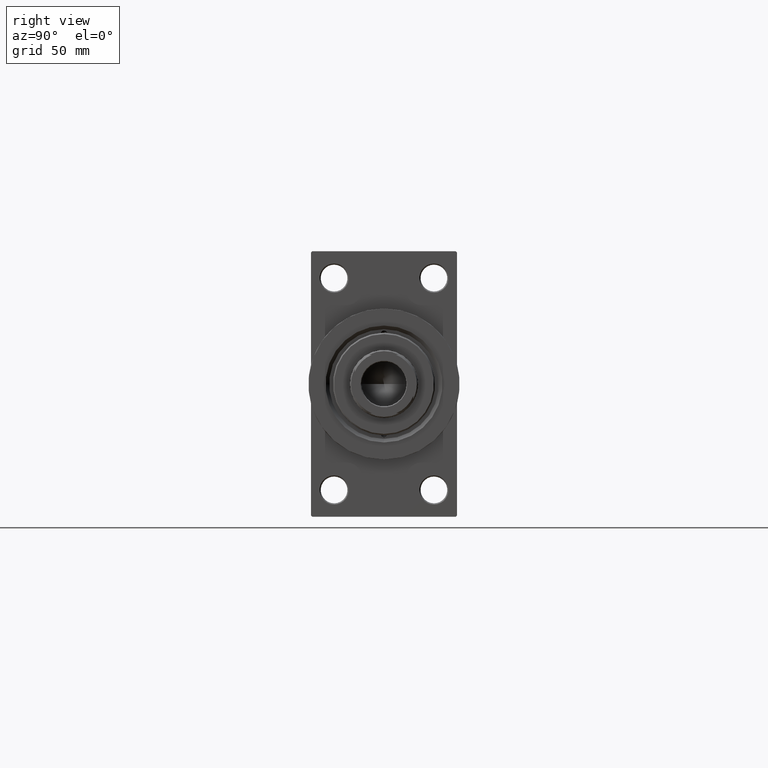
[diagram: clean part render]
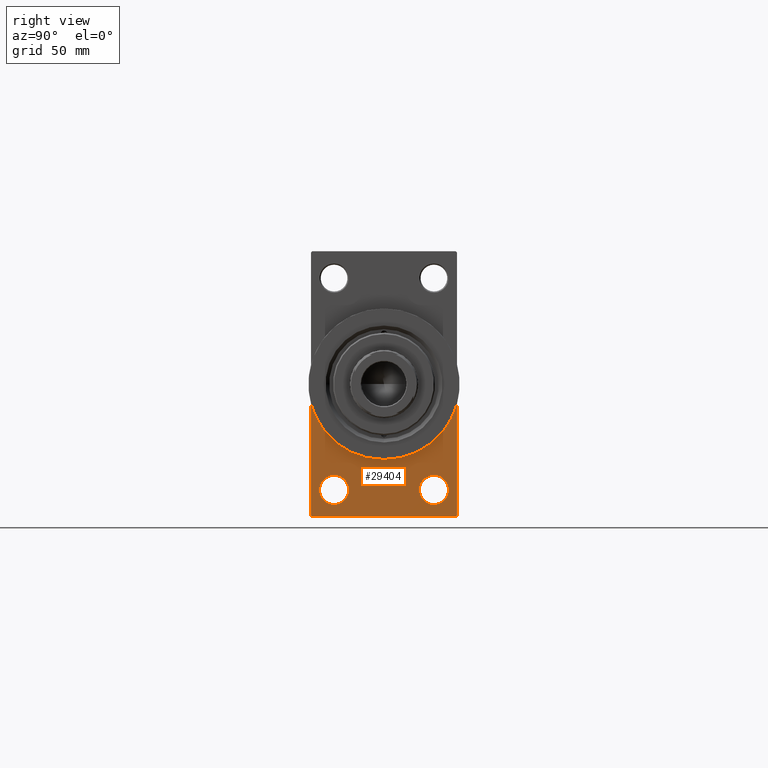
[diagram: same view with one face highlighted and labeled with its STEP entity id]
A machine part, right view. The second image highlights one B-rep face of the part: STEP entity #29404.
In plain terms, the highlighted planar face has unit normal (-1, 0, 0).
Its self-contained STEP definition (entity closure, byte-faithful):
#216 = LINE ( 'NONE', #30227, #4183 ) ;
#352 = EDGE_CURVE ( 'NONE', #36280, #42119, #1720, .T. ) ;
#484 = VERTEX_POINT ( 'NONE', #19967 ) ;
#953 = DIRECTION ( 'NONE',  ( -0.000000000000000000, 0.7071067811865474617, 0.7071067811865474617 ) ) ;
#1720 = CIRCLE ( 'NONE', #31333, 6.000000000000116351 ) ;
#1772 = CARTESIAN_POINT ( 'NONE',  ( 218.0000000000000284, -20.50000000000000000, -43.50000000000000000 ) ) ;
#2095 = VERTEX_POINT ( 'NONE', #22514 ) ;
#2786 = VECTOR ( 'NONE', #17631, 1000.000000000000000 ) ;
#3122 = FACE_BOUND ( 'NONE', #33902, .T. ) ;
#3446 = DIRECTION ( 'NONE',  ( 1.000000000000000000, 0.000000000000000000, 0.000000000000000000 ) ) ;
#3470 = AXIS2_PLACEMENT_3D ( 'NONE', #28071, #17818, #24407 ) ;
#3593 = VERTEX_POINT ( 'NONE', #32612 ) ;
#3714 = CARTESIAN_POINT ( 'NONE',  ( 218.0000000000000284, -30.00000000000000000, -7.810249675906652200 ) ) ;
#3842 = FACE_OUTER_BOUND ( 'NONE', #30313, .T. ) ;
#4183 = VECTOR ( 'NONE', #953, 1000.000000000000114 ) ;
#4465 = ORIENTED_EDGE ( 'NONE', *, *, #5328, .F. ) ;
#5328 = EDGE_CURVE ( 'NONE', #2095, #3593, #29971, .T. ) ;
#5686 = DIRECTION ( 'NONE',  ( 0.000000000000000000, -1.000000000000000000, -1.156482317317871478E-16 ) ) ;
#6412 = CARTESIAN_POINT ( 'NONE',  ( 218.0000000000000284, -30.00000000000000000, 54.50000000000000000 ) ) ;
#7270 = DIRECTION ( 'NONE',  ( -1.000000000000000000, 0.000000000000000000, -0.000000000000000000 ) ) ;
#7502 = EDGE_CURVE ( 'NONE', #35258, #42471, #28357, .T. ) ;
#8010 = ORIENTED_EDGE ( 'NONE', *, *, #32144, .F. ) ;
#8204 = CARTESIAN_POINT ( 'NONE',  ( 218.0000000000000284, -30.00000000000000000, -53.99999999999995737 ) ) ;
#8323 = CIRCLE ( 'NONE', #35555, 6.000000000000116351 ) ;
#8754 = CARTESIAN_POINT ( 'NONE',  ( 218.0000000000000284, 20.50000000000000000, -43.50000000000000000 ) ) ;
#8962 = ORIENTED_EDGE ( 'NONE', *, *, #23804, .T. ) ;
#9014 = CARTESIAN_POINT ( 'NONE',  ( 218.0000000000000284, 20.50000000000000000, -37.49999999999987921 ) ) ;
#9870 = LINE ( 'NONE', #24740, #34189 ) ;
#11963 = LINE ( 'NONE', #41937, #18756 ) ;
#13080 = VERTEX_POINT ( 'NONE', #16877 ) ;
#13777 = DIRECTION ( 'NONE',  ( 0.000000000000000000, 0.000000000000000000, -1.000000000000000000 ) ) ;
#14285 = CIRCLE ( 'NONE', #29055, 6.000000000000116351 ) ;
#14448 = EDGE_CURVE ( 'NONE', #20041, #39780, #15042, .T. ) ;
#14907 = EDGE_CURVE ( 'NONE', #28903, #13080, #216, .T. ) ;
#15042 = CIRCLE ( 'NONE', #36154, 6.000000000000116351 ) ;
#15484 = EDGE_CURVE ( 'NONE', #42119, #36280, #14285, .T. ) ;
#16877 = CARTESIAN_POINT ( 'NONE',  ( 218.0000000000000284, 29.99999999999999645, -54.00000000000002132 ) ) ;
#16900 = LINE ( 'NONE', #39561, #20144 ) ;
#17631 = DIRECTION ( 'NONE',  ( 0.000000000000000000, 0.000000000000000000, -1.000000000000000000 ) ) ;
#17818 = DIRECTION ( 'NONE',  ( 1.000000000000000000, 0.000000000000000000, 0.000000000000000000 ) ) ;
#18008 = FACE_BOUND ( 'NONE', #20216, .T. ) ;
#18044 = EDGE_CURVE ( 'NONE', #35258, #2095, #43968, .T. ) ;
#18410 = CARTESIAN_POINT ( 'NONE',  ( 218.0000000000000284, 20.50000000000000000, -43.50000000000000000 ) ) ;
#18756 = VECTOR ( 'NONE', #42180, 1000.000000000000000 ) ;
#19967 = CARTESIAN_POINT ( 'NONE',  ( 218.0000000000000284, -29.49999999999997513, -54.50000000000000000 ) ) ;
#20041 = VERTEX_POINT ( 'NONE', #33985 ) ;
#20144 = VECTOR ( 'NONE', #5686, 1000.000000000000000 ) ;
#20216 = EDGE_LOOP ( 'NONE', ( #26952, #39765 ) ) ;
#22514 = CARTESIAN_POINT ( 'NONE',  ( 218.0000000000000284, 3.796405077356795115E-15, -31.00000000000000000 ) ) ;
#22944 = AXIS2_PLACEMENT_3D ( 'NONE', #26379, #3446, #25886 ) ;
#23390 = DIRECTION ( 'NONE',  ( 0.000000000000000000, 0.000000000000000000, 1.000000000000000000 ) ) ;
#23804 = EDGE_CURVE ( 'NONE', #39780, #20041, #8323, .T. ) ;
#24407 = DIRECTION ( 'NONE',  ( 0.000000000000000000, 0.000000000000000000, -1.000000000000000000 ) ) ;
#24740 = CARTESIAN_POINT ( 'NONE',  ( 218.0000000000000284, 29.99999999999999645, 54.49999999999999289 ) ) ;
#25068 = ORIENTED_EDGE ( 'NONE', *, *, #36309, .T. ) ;
#25886 = DIRECTION ( 'NONE',  ( 0.000000000000000000, 0.000000000000000000, -1.000000000000000000 ) ) ;
#25921 = ORIENTED_EDGE ( 'NONE', *, *, #41799, .F. ) ;
#26379 = CARTESIAN_POINT ( 'NONE',  ( 218.0000000000000284, 0.000000000000000000, 0.000000000000000000 ) ) ;
#26952 = ORIENTED_EDGE ( 'NONE', *, *, #15484, .T. ) ;
#28071 = CARTESIAN_POINT ( 'NONE',  ( 218.0000000000000284, 0.000000000000000000, 0.000000000000000000 ) ) ;
#28357 = LINE ( 'NONE', #6412, #2786 ) ;
#28600 = AXIS2_PLACEMENT_3D ( 'NONE', #28973, #7270, #29683 ) ;
#28903 = VERTEX_POINT ( 'NONE', #34249 ) ;
#28973 = CARTESIAN_POINT ( 'NONE',  ( 218.0000000000000284, 0.000000000000000000, 0.000000000000000000 ) ) ;
#29055 = AXIS2_PLACEMENT_3D ( 'NONE', #18410, #33999, #45001 ) ;
#29404 = ADVANCED_FACE ( 'NONE', ( #3122, #18008, #3842 ), #44828, .F. ) ;
#29459 = ORIENTED_EDGE ( 'NONE', *, *, #14907, .T. ) ;
#29683 = DIRECTION ( 'NONE',  ( -0.000000000000000000, 0.000000000000000000, 1.000000000000000000 ) ) ;
#29971 = CIRCLE ( 'NONE', #3470, 31.00000000000000000 ) ;
#30227 = CARTESIAN_POINT ( 'NONE',  ( 218.0000000000000284, 29.99999999999999645, -54.00000000000002132 ) ) ;
#30313 = EDGE_LOOP ( 'NONE', ( #42138, #25068, #8010, #29459, #25921, #4465, #33707 ) ) ;
#30328 = CARTESIAN_POINT ( 'NONE',  ( 218.0000000000000284, -20.50000000000000000, -37.49999999999987921 ) ) ;
#30703 = DIRECTION ( 'NONE',  ( -1.000000000000000000, 0.000000000000000000, -0.000000000000000000 ) ) ;
#31333 = AXIS2_PLACEMENT_3D ( 'NONE', #8754, #30703, #23390 ) ;
#32144 = EDGE_CURVE ( 'NONE', #28903, #484, #16900, .T. ) ;
#32612 = CARTESIAN_POINT ( 'NONE',  ( 218.0000000000000284, 29.99999999999999645, -7.810249675906665523 ) ) ;
#33473 = ORIENTED_EDGE ( 'NONE', *, *, #14448, .T. ) ;
#33707 = ORIENTED_EDGE ( 'NONE', *, *, #18044, .F. ) ;
#33902 = EDGE_LOOP ( 'NONE', ( #33473, #8962 ) ) ;
#33985 = CARTESIAN_POINT ( 'NONE',  ( 218.0000000000000284, -20.50000000000000000, -49.50000000000011369 ) ) ;
#33999 = DIRECTION ( 'NONE',  ( -1.000000000000000000, 0.000000000000000000, -0.000000000000000000 ) ) ;
#34189 = VECTOR ( 'NONE', #13777, 1000.000000000000000 ) ;
#34249 = CARTESIAN_POINT ( 'NONE',  ( 218.0000000000000284, 29.50000000000002132, -54.49999999999999289 ) ) ;
#35258 = VERTEX_POINT ( 'NONE', #3714 ) ;
#35555 = AXIS2_PLACEMENT_3D ( 'NONE', #36709, #40863, #44779 ) ;
#35906 = DIRECTION ( 'NONE',  ( 0.000000000000000000, 0.000000000000000000, 1.000000000000000000 ) ) ;
#36146 = DIRECTION ( 'NONE',  ( -1.000000000000000000, 0.000000000000000000, -0.000000000000000000 ) ) ;
#36154 = AXIS2_PLACEMENT_3D ( 'NONE', #1772, #36146, #35906 ) ;
#36280 = VERTEX_POINT ( 'NONE', #9014 ) ;
#36309 = EDGE_CURVE ( 'NONE', #42471, #484, #11963, .T. ) ;
#36709 = CARTESIAN_POINT ( 'NONE',  ( 218.0000000000000284, -20.50000000000000000, -43.50000000000000000 ) ) ;
#39561 = CARTESIAN_POINT ( 'NONE',  ( 218.0000000000000284, 29.99999999999999645, -54.49999999999999289 ) ) ;
#39765 = ORIENTED_EDGE ( 'NONE', *, *, #352, .T. ) ;
#39780 = VERTEX_POINT ( 'NONE', #30328 ) ;
#40740 = CARTESIAN_POINT ( 'NONE',  ( 218.0000000000000284, 20.50000000000000000, -49.50000000000011369 ) ) ;
#40863 = DIRECTION ( 'NONE',  ( -1.000000000000000000, 0.000000000000000000, -0.000000000000000000 ) ) ;
#41799 = EDGE_CURVE ( 'NONE', #3593, #13080, #9870, .T. ) ;
#41937 = CARTESIAN_POINT ( 'NONE',  ( 218.0000000000000284, -29.49999999999997513, -54.50000000000000000 ) ) ;
#42119 = VERTEX_POINT ( 'NONE', #40740 ) ;
#42138 = ORIENTED_EDGE ( 'NONE', *, *, #7502, .T. ) ;
#42180 = DIRECTION ( 'NONE',  ( 0.000000000000000000, 0.7071067811865352493, -0.7071067811865597852 ) ) ;
#42471 = VERTEX_POINT ( 'NONE', #8204 ) ;
#43968 = CIRCLE ( 'NONE', #22944, 31.00000000000000000 ) ;
#44779 = DIRECTION ( 'NONE',  ( 0.000000000000000000, 0.000000000000000000, 1.000000000000000000 ) ) ;
#44828 = PLANE ( 'NONE',  #28600 ) ;
#45001 = DIRECTION ( 'NONE',  ( 0.000000000000000000, 0.000000000000000000, 1.000000000000000000 ) ) ;